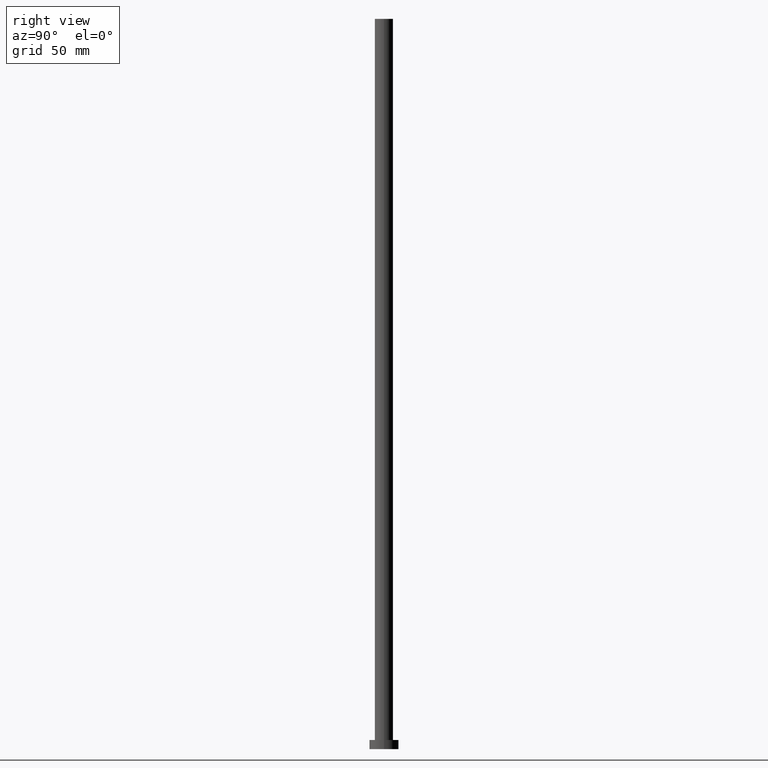
[diagram: clean part render]
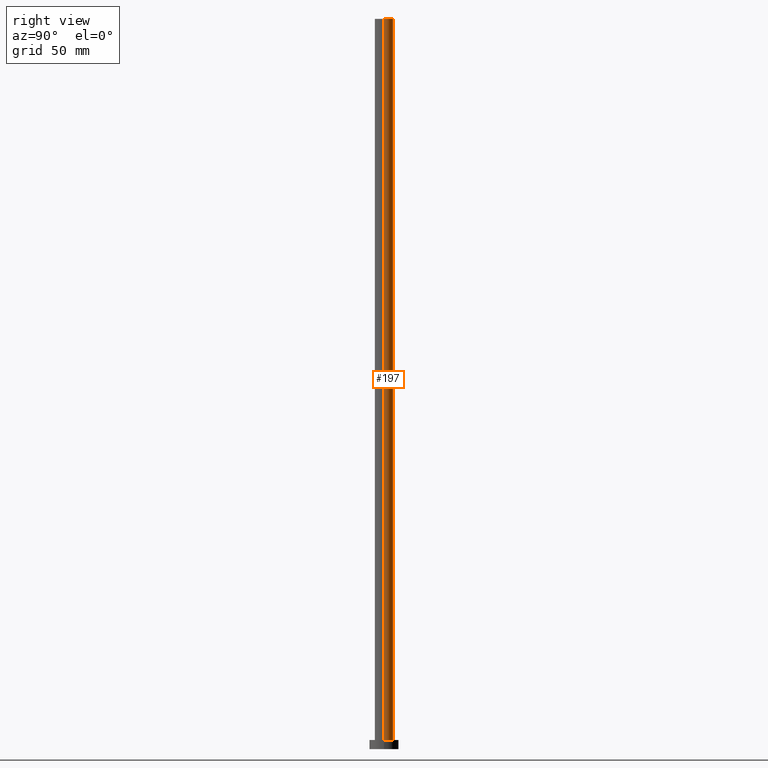
[diagram: same view with one face highlighted and labeled with its STEP entity id]
A machine part, right view. The second image highlights one B-rep face of the part: STEP entity #197.
In plain terms, the highlighted cylindrical surface (edge-blend (fillet) strip) has radius 5 mm, axis along (-0, -0, -1).
Its self-contained STEP definition (entity closure, byte-faithful):
#8 = ORIENTED_EDGE ( 'NONE', *, *, #241, .T. ) ;
#25 = CIRCLE ( 'NONE', #200, 5.000000000000000000 ) ;
#26 = DIRECTION ( 'NONE',  ( -0.000000000000000000, -0.000000000000000000, -1.000000000000000000 ) ) ;
#47 = DIRECTION ( 'NONE',  ( -1.000000000000000000, 0.000000000000000000, 0.000000000000000000 ) ) ;
#52 = CIRCLE ( 'NONE', #120, 5.000000000000000000 ) ;
#59 = DIRECTION ( 'NONE',  ( 0.000000000000000000, 0.000000000000000000, 1.000000000000000000 ) ) ;
#64 = CARTESIAN_POINT ( 'NONE',  ( 5.000000000000000000, 6.123233995736765296E-16, 400.0000000000000000 ) ) ;
#70 = EDGE_CURVE ( 'NONE', #147, #130, #80, .T. ) ;
#71 = EDGE_LOOP ( 'NONE', ( #187, #8, #206, #167 ) ) ;
#77 = DIRECTION ( 'NONE',  ( -0.000000000000000000, -0.000000000000000000, -1.000000000000000000 ) ) ;
#80 = LINE ( 'NONE', #173, #221 ) ;
#90 = VERTEX_POINT ( 'NONE', #121 ) ;
#101 = CARTESIAN_POINT ( 'NONE',  ( 0.000000000000000000, 0.000000000000000000, 400.0000000000000000 ) ) ;
#108 = EDGE_CURVE ( 'NONE', #90, #130, #52, .T. ) ;
#114 = DIRECTION ( 'NONE',  ( 1.000000000000000000, 0.000000000000000000, 0.000000000000000000 ) ) ;
#116 = DIRECTION ( 'NONE',  ( 0.000000000000000000, 0.000000000000000000, 1.000000000000000000 ) ) ;
#120 = AXIS2_PLACEMENT_3D ( 'NONE', #151, #59, #138 ) ;
#121 = CARTESIAN_POINT ( 'NONE',  ( 5.000000000000000000, 6.123233995736765296E-16, 5.000000000000000000 ) ) ;
#122 = EDGE_CURVE ( 'NONE', #245, #147, #25, .T. ) ;
#124 = LINE ( 'NONE', #198, #234 ) ;
#126 = AXIS2_PLACEMENT_3D ( 'NONE', #217, #141, #47 ) ;
#127 = FACE_OUTER_BOUND ( 'NONE', #71, .T. ) ;
#130 = VERTEX_POINT ( 'NONE', #172 ) ;
#138 = DIRECTION ( 'NONE',  ( 1.000000000000000000, 0.000000000000000000, 0.000000000000000000 ) ) ;
#141 = DIRECTION ( 'NONE',  ( -0.000000000000000000, -0.000000000000000000, -1.000000000000000000 ) ) ;
#147 = VERTEX_POINT ( 'NONE', #178 ) ;
#151 = CARTESIAN_POINT ( 'NONE',  ( 0.000000000000000000, 0.000000000000000000, 5.000000000000000000 ) ) ;
#167 = ORIENTED_EDGE ( 'NONE', *, *, #70, .F. ) ;
#172 = CARTESIAN_POINT ( 'NONE',  ( -5.000000000000000000, 0.000000000000000000, 5.000000000000000000 ) ) ;
#173 = CARTESIAN_POINT ( 'NONE',  ( -5.000000000000000000, 0.000000000000000000, 400.0000000000000000 ) ) ;
#178 = CARTESIAN_POINT ( 'NONE',  ( -5.000000000000000000, 0.000000000000000000, 400.0000000000000000 ) ) ;
#187 = ORIENTED_EDGE ( 'NONE', *, *, #122, .F. ) ;
#197 = ADVANCED_FACE ( 'NONE', ( #127 ), #201, .T. ) ;
#198 = CARTESIAN_POINT ( 'NONE',  ( 5.000000000000000000, 6.123233995736765296E-16, 400.0000000000000000 ) ) ;
#200 = AXIS2_PLACEMENT_3D ( 'NONE', #101, #116, #114 ) ;
#201 = CYLINDRICAL_SURFACE ( 'NONE', #126, 5.000000000000000000 ) ;
#206 = ORIENTED_EDGE ( 'NONE', *, *, #108, .T. ) ;
#217 = CARTESIAN_POINT ( 'NONE',  ( 0.000000000000000000, 0.000000000000000000, 400.0000000000000000 ) ) ;
#221 = VECTOR ( 'NONE', #77, 1000.000000000000000 ) ;
#234 = VECTOR ( 'NONE', #26, 1000.000000000000000 ) ;
#241 = EDGE_CURVE ( 'NONE', #245, #90, #124, .T. ) ;
#245 = VERTEX_POINT ( 'NONE', #64 ) ;